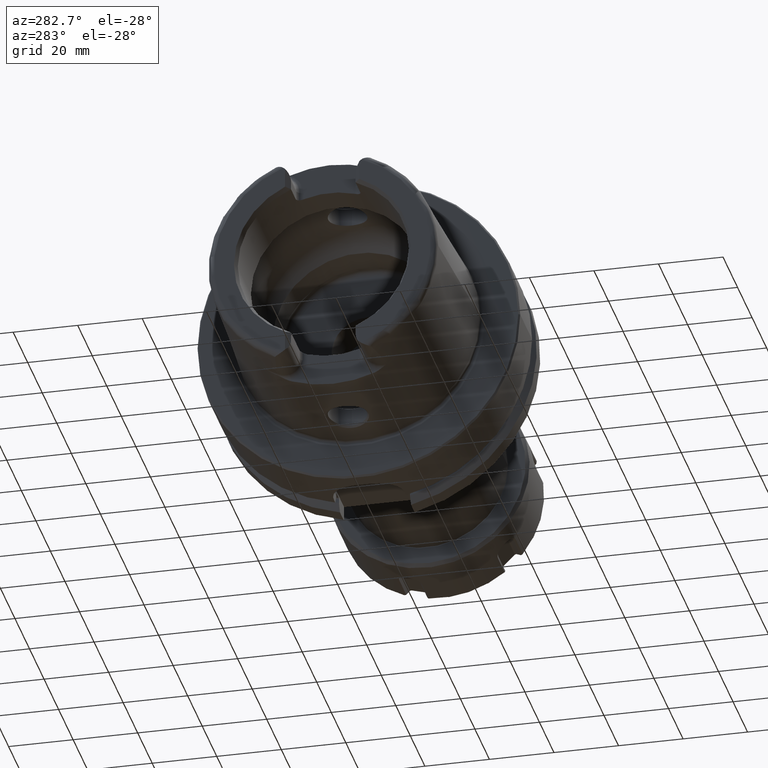
[diagram: clean part render]
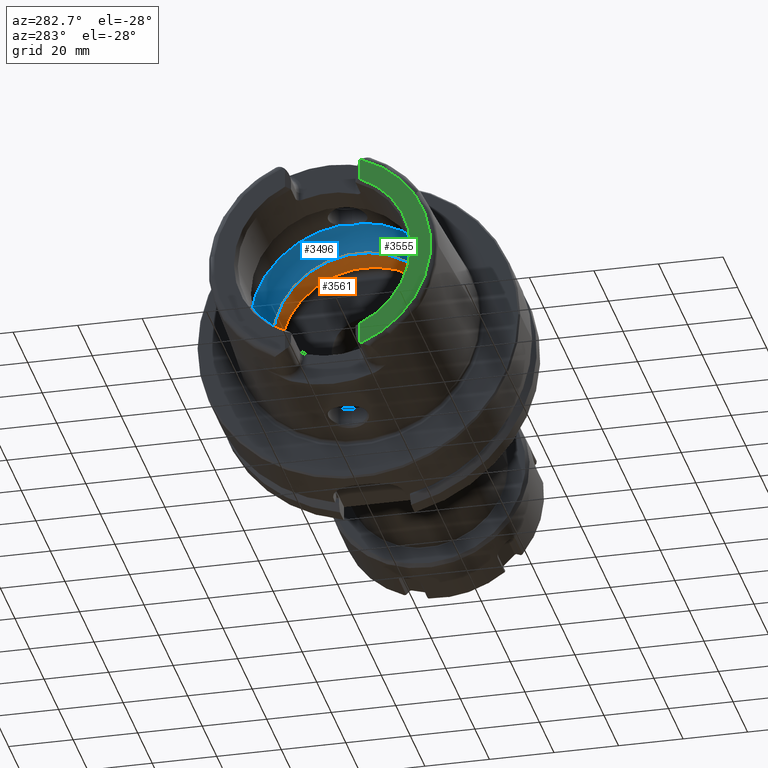
[diagram: same view with three faces highlighted in distinct colors, each labeled with its STEP entity id]
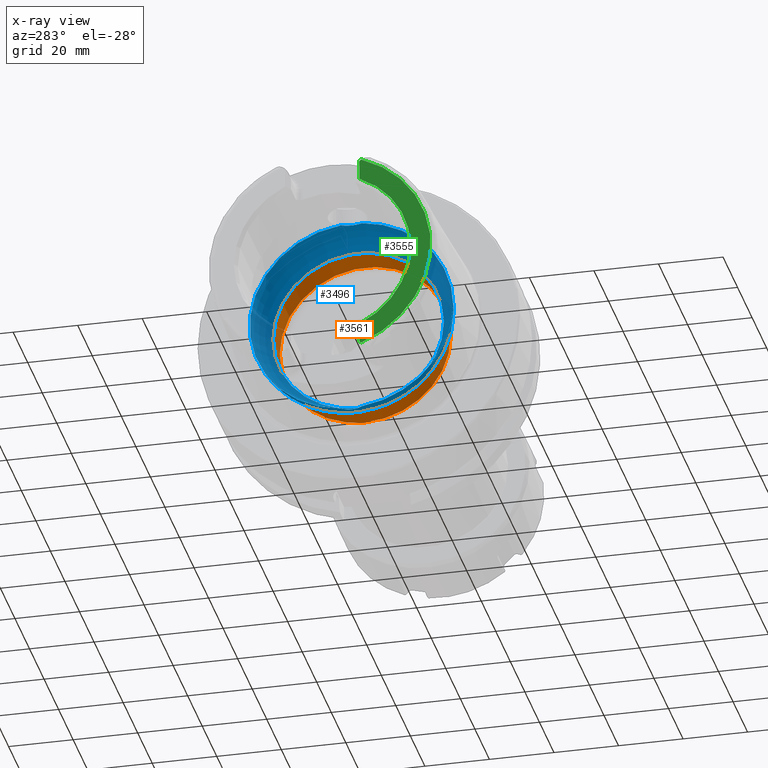
[diagram: x-ray of the same camera — body ghosted, the three highlighted faces saturated]
A machine part, auxiliary view with three faces highlighted in distinct colors.
The next image is the same camera in x-ray (body ghosted, the three faces saturated) — at least one of them is partly hidden behind the body in this view.
Their STEP definitions:

[orange] entity #3561 — the highlighted cylindrical surface (bore or boss wall) has radius 26.5 mm, axis along (-1, 0, 0).
#433=FACE_OUTER_BOUND('',#644,.T.);
#644=EDGE_LOOP('',(#2866,#2867,#2868,#2869,#2870,#2871,#2872,#2873));
#854=LINE('',#6712,#1043);
#1043=VECTOR('',#4732,26.5);
#1189=CIRCLE('',#3823,26.5);
#1190=CIRCLE('',#3824,26.5);
#1191=CIRCLE('',#3825,26.5);
#1260=CIRCLE('',#3958,26.5);
#1261=CIRCLE('',#3959,26.5);
#1262=CIRCLE('',#3960,26.5);
#1469=VERTEX_POINT('',#6074);
#1470=VERTEX_POINT('',#6075);
#1471=VERTEX_POINT('',#6077);
#1570=VERTEX_POINT('',#6704);
#1571=VERTEX_POINT('',#6706);
#1572=VERTEX_POINT('',#6708);
#1871=EDGE_CURVE('',#1469,#1470,#1189,.T.);
#1872=EDGE_CURVE('',#1471,#1469,#1190,.T.);
#1873=EDGE_CURVE('',#1470,#1471,#1191,.T.);
#2035=EDGE_CURVE('',#1570,#1571,#1260,.T.);
#2036=EDGE_CURVE('',#1571,#1572,#1261,.T.);
#2037=EDGE_CURVE('',#1572,#1570,#1262,.T.);
#2038=EDGE_CURVE('',#1571,#1471,#854,.T.);
#2866=ORIENTED_EDGE('',*,*,#2037,.F.);
#2867=ORIENTED_EDGE('',*,*,#2036,.F.);
#2868=ORIENTED_EDGE('',*,*,#2038,.T.);
#2869=ORIENTED_EDGE('',*,*,#1872,.T.);
#2870=ORIENTED_EDGE('',*,*,#1871,.T.);
#2871=ORIENTED_EDGE('',*,*,#1873,.T.);
#2872=ORIENTED_EDGE('',*,*,#2038,.F.);
#2873=ORIENTED_EDGE('',*,*,#2035,.F.);
#3441=CYLINDRICAL_SURFACE('',#3961,26.5);
#3561=ADVANCED_FACE('',(#433),#3441,.F.);
#3823=AXIS2_PLACEMENT_3D('',#6076,#4401,#4402);
#3824=AXIS2_PLACEMENT_3D('',#6078,#4403,#4404);
#3825=AXIS2_PLACEMENT_3D('',#6079,#4405,#4406);
#3958=AXIS2_PLACEMENT_3D('',#6707,#4724,#4725);
#3959=AXIS2_PLACEMENT_3D('',#6709,#4726,#4727);
#3960=AXIS2_PLACEMENT_3D('',#6710,#4728,#4729);
#3961=AXIS2_PLACEMENT_3D('',#6711,#4730,#4731);
#4401=DIRECTION('center_axis',(-1.,0.,0.));
#4402=DIRECTION('ref_axis',(0.,0.,1.));
#4403=DIRECTION('center_axis',(-1.,0.,0.));
#4404=DIRECTION('ref_axis',(0.,0.,1.));
#4405=DIRECTION('center_axis',(-1.,0.,0.));
#4406=DIRECTION('ref_axis',(0.,0.,1.));
#4724=DIRECTION('center_axis',(-1.,0.,0.));
#4725=DIRECTION('ref_axis',(0.,0.,1.));
#4726=DIRECTION('center_axis',(-1.,0.,0.));
#4727=DIRECTION('ref_axis',(0.,0.,1.));
#4728=DIRECTION('center_axis',(-1.,0.,0.));
#4729=DIRECTION('ref_axis',(0.,0.,1.));
#4730=DIRECTION('center_axis',(-1.,0.,0.));
#4731=DIRECTION('ref_axis',(0.,1.,0.));
#4732=DIRECTION('',(-1.,0.,0.));
#6074=CARTESIAN_POINT('',(-0.253205655191035,26.5,0.));
#6075=CARTESIAN_POINT('',(-0.253205655191033,-3.24531401774049E-15,-26.5));
#6076=CARTESIAN_POINT('Origin',(-0.253205655191033,0.,0.));
#6077=CARTESIAN_POINT('',(-0.253205655191033,-26.5,3.24531401774049E-15));
#6078=CARTESIAN_POINT('Origin',(-0.253205655191033,0.,0.));
#6079=CARTESIAN_POINT('Origin',(-0.253205655191033,0.,0.));
#6704=CARTESIAN_POINT('',(9.3,-3.24531401774049E-15,-26.5));
#6706=CARTESIAN_POINT('',(9.3,-26.5,3.24531401774049E-15));
#6707=CARTESIAN_POINT('Origin',(9.3,0.,0.));
#6708=CARTESIAN_POINT('',(9.3,26.5,0.));
#6709=CARTESIAN_POINT('Origin',(9.3,0.,0.));
#6710=CARTESIAN_POINT('Origin',(9.3,0.,0.));
#6711=CARTESIAN_POINT('Origin',(4.52339717240448,0.,0.));
#6712=CARTESIAN_POINT('',(4.52339717240448,-26.5,3.24531401774049E-15));

[blue] entity #3496 — the highlighted toroidal blend (fillet) surface has major radius 19.5 mm and minor (blend) radius 12 mm.
#67=B_SPLINE_CURVE_WITH_KNOTS('',3,(#5814,#5815,#5816,#5817,#5818,#5819,
#5820,#5821,#5822,#5823),.UNSPECIFIED.,.F.,.F.,(4,2,2,2,4),(-0.704306975532235,
-0.563368317577754,-0.446049375641081,-0.386534165165624,-0.352317223799877),
 .UNSPECIFIED.);
#69=B_SPLINE_CURVE_WITH_KNOTS('',3,(#5856,#5857,#5858,#5859,#5860,#5861,
#5862,#5863,#5864,#5865),.UNSPECIFIED.,.F.,.F.,(4,2,2,2,4),(-0.352317223799877,
-0.339935606805379,-0.289031750490702,-0.208814277120691,0.),
 .UNSPECIFIED.);
#72=B_SPLINE_CURVE_WITH_KNOTS('',3,(#6006,#6007,#6008,#6009,#6010,#6011,
#6012,#6013,#6014,#6015),.UNSPECIFIED.,.F.,.F.,(4,2,2,2,4),(-0.704306975532881,
-0.563368317578124,-0.446049375641235,-0.386534165165663,-0.352317223799864),
 .UNSPECIFIED.);
#74=B_SPLINE_CURVE_WITH_KNOTS('',3,(#6048,#6049,#6050,#6051,#6052,#6053,
#6054,#6055,#6056,#6057),.UNSPECIFIED.,.F.,.F.,(4,2,2,2,4),(-0.352317223799864,
-0.339935606805357,-0.289031750490679,-0.208814277120681,0.),
 .UNSPECIFIED.);
#206=TOROIDAL_SURFACE('',#3822,19.5,12.);
#368=FACE_OUTER_BOUND('',#576,.T.);
#576=EDGE_LOOP('',(#2499,#2500,#2501,#2502,#2503,#2504,#2505,#2506,#2507,
#2508,#2509,#2510));
#1183=CIRCLE('',#3816,31.5);
#1187=CIRCLE('',#3820,31.5);
#1188=CIRCLE('',#3821,31.5);
#1189=CIRCLE('',#3823,26.5);
#1190=CIRCLE('',#3824,26.5);
#1191=CIRCLE('',#3825,26.5);
#1192=CIRCLE('',#3826,12.);
#1456=VERTEX_POINT('',#5811);
#1457=VERTEX_POINT('',#5813);
#1458=VERTEX_POINT('',#5824);
#1461=VERTEX_POINT('',#6004);
#1462=VERTEX_POINT('',#6005);
#1463=VERTEX_POINT('',#6016);
#1465=VERTEX_POINT('',#6062);
#1469=VERTEX_POINT('',#6074);
#1470=VERTEX_POINT('',#6075);
#1471=VERTEX_POINT('',#6077);
#1853=EDGE_CURVE('',#1457,#1456,#67,.T.);
#1855=EDGE_CURVE('',#1456,#1458,#69,.T.);
#1859=EDGE_CURVE('',#1461,#1462,#72,.T.);
#1861=EDGE_CURVE('',#1462,#1463,#74,.T.);
#1864=EDGE_CURVE('',#1465,#1461,#1183,.T.);
#1869=EDGE_CURVE('',#1458,#1465,#1187,.T.);
#1870=EDGE_CURVE('',#1463,#1457,#1188,.T.);
#1871=EDGE_CURVE('',#1469,#1470,#1189,.T.);
#1872=EDGE_CURVE('',#1471,#1469,#1190,.T.);
#1873=EDGE_CURVE('',#1470,#1471,#1191,.T.);
#1874=EDGE_CURVE('',#1470,#1456,#1192,.T.);
#2499=ORIENTED_EDGE('',*,*,#1871,.F.);
#2500=ORIENTED_EDGE('',*,*,#1872,.F.);
#2501=ORIENTED_EDGE('',*,*,#1873,.F.);
#2502=ORIENTED_EDGE('',*,*,#1874,.T.);
#2503=ORIENTED_EDGE('',*,*,#1855,.T.);
#2504=ORIENTED_EDGE('',*,*,#1869,.T.);
#2505=ORIENTED_EDGE('',*,*,#1864,.T.);
#2506=ORIENTED_EDGE('',*,*,#1859,.T.);
#2507=ORIENTED_EDGE('',*,*,#1861,.T.);
#2508=ORIENTED_EDGE('',*,*,#1870,.T.);
#2509=ORIENTED_EDGE('',*,*,#1853,.T.);
#2510=ORIENTED_EDGE('',*,*,#1874,.F.);
#3496=ADVANCED_FACE('',(#368),#206,.F.);
#3816=AXIS2_PLACEMENT_3D('',#6063,#4386,#4387);
#3820=AXIS2_PLACEMENT_3D('',#6071,#4395,#4396);
#3821=AXIS2_PLACEMENT_3D('',#6072,#4397,#4398);
#3822=AXIS2_PLACEMENT_3D('',#6073,#4399,#4400);
#3823=AXIS2_PLACEMENT_3D('',#6076,#4401,#4402);
#3824=AXIS2_PLACEMENT_3D('',#6078,#4403,#4404);
#3825=AXIS2_PLACEMENT_3D('',#6079,#4405,#4406);
#3826=AXIS2_PLACEMENT_3D('',#6080,#4407,#4408);
#4386=DIRECTION('center_axis',(-1.,0.,0.));
#4387=DIRECTION('ref_axis',(0.,0.,1.));
#4395=DIRECTION('center_axis',(-1.,0.,0.));
#4396=DIRECTION('ref_axis',(0.,0.,1.));
#4397=DIRECTION('center_axis',(-1.,0.,0.));
#4398=DIRECTION('ref_axis',(0.,0.,1.));
#4399=DIRECTION('center_axis',(-1.,0.,0.));
#4400=DIRECTION('ref_axis',(0.,0.,1.));
#4401=DIRECTION('center_axis',(-1.,0.,0.));
#4402=DIRECTION('ref_axis',(0.,0.,1.));
#4403=DIRECTION('center_axis',(-1.,0.,0.));
#4404=DIRECTION('ref_axis',(0.,0.,1.));
#4405=DIRECTION('center_axis',(-1.,0.,0.));
#4406=DIRECTION('ref_axis',(0.,0.,1.));
#4407=DIRECTION('center_axis',(0.,1.,-1.22464679914735E-16));
#4408=DIRECTION('ref_axis',(0.,-1.22464679914735E-16,-1.));
#5811=CARTESIAN_POINT('',(-9.,7.31685969699336E-16,-31.4582607431014));
#5813=CARTESIAN_POINT('',(-10.,3.31662479035542,-31.3249102153542));
#5814=CARTESIAN_POINT('Ctrl Pts',(-10.,3.31662479035541,-31.3249102153542));
#5815=CARTESIAN_POINT('Ctrl Pts',(-9.74127936765642,2.9265887617158,-31.3662065240371));
#5816=CARTESIAN_POINT('Ctrl Pts',(-9.52862762836098,2.50688318043554,-31.3949925235713));
#5817=CARTESIAN_POINT('Ctrl Pts',(-9.23240476385999,1.69927856892452,-31.4324255053116));
#5818=CARTESIAN_POINT('Ctrl Pts',(-9.13392344910017,1.31988974241601,-31.4435429781858));
#5819=CARTESIAN_POINT('Ctrl Pts',(-9.04220079429722,0.737558982965052,-31.4537190708018));
#5820=CARTESIAN_POINT('Ctrl Pts',(-9.02106779489129,0.540134132990375,-31.4559959808551));
#5821=CARTESIAN_POINT('Ctrl Pts',(-9.00325309475839,0.228126507331767,-31.4579131546092));
#5822=CARTESIAN_POINT('Ctrl Pts',(-9.,0.114070256385601,-31.4582607431014));
#5823=CARTESIAN_POINT('Ctrl Pts',(-9.,6.93889390390723E-16,-31.4582607431014));
#5824=CARTESIAN_POINT('',(-10.,-3.31662479035542,-31.3249102153542));
#5856=CARTESIAN_POINT('Ctrl Pts',(-9.,7.01335490450834E-16,-31.4582607431014));
#5857=CARTESIAN_POINT('Ctrl Pts',(-9.,-0.0412770448981316,-31.4582607431014));
#5858=CARTESIAN_POINT('Ctrl Pts',(-9.0004259501075,-0.0825559236689198,
-31.4582151361457));
#5859=CARTESIAN_POINT('Ctrl Pts',(-9.00478075477959,-0.293516919658797,
-31.4577484235034));
#5860=CARTESIAN_POINT('Ctrl Pts',(-9.01548241237086,-0.462981091842713,
-31.4566045938877));
#5861=CARTESIAN_POINT('Ctrl Pts',(-9.06151123201634,-0.897706518793593,
-31.4515940123075));
#5862=CARTESIAN_POINT('Ctrl Pts',(-9.10742242341762,-1.16146830462694,-31.4465573898449));
#5863=CARTESIAN_POINT('Ctrl Pts',(-9.33560100291262,-2.09736419662528,-31.4200720324784));
#5864=CARTESIAN_POINT('Ctrl Pts',(-9.61673416003176,-2.73882979665765,-31.3860861033828));
#5865=CARTESIAN_POINT('Ctrl Pts',(-10.,-3.31662479035541,-31.3249102153542));
#6004=CARTESIAN_POINT('',(-10.,-3.31662479035542,31.3249102153542));
#6005=CARTESIAN_POINT('',(-8.99999999999999,7.75054056598756E-16,31.4582607431014));
#6006=CARTESIAN_POINT('Ctrl Pts',(-9.99999999999999,-3.31662479035541,31.3249102153542));
#6007=CARTESIAN_POINT('Ctrl Pts',(-9.74127936765643,-2.92658876171583,31.3662065240371));
#6008=CARTESIAN_POINT('Ctrl Pts',(-9.52862762836099,-2.50688318043561,31.3949925235713));
#6009=CARTESIAN_POINT('Ctrl Pts',(-9.23240476385996,-1.69927856892447,31.4324255053116));
#6010=CARTESIAN_POINT('Ctrl Pts',(-9.13392344910015,-1.31988974241592,31.4435429781858));
#6011=CARTESIAN_POINT('Ctrl Pts',(-9.04220079429722,-0.737558982965067,
31.4537190708018));
#6012=CARTESIAN_POINT('Ctrl Pts',(-9.02106779489129,-0.540134132990415,
31.4559959808551));
#6013=CARTESIAN_POINT('Ctrl Pts',(-9.00325309475839,-0.228126507331796,
31.4579131546092));
#6014=CARTESIAN_POINT('Ctrl Pts',(-8.99999999999999,-0.114070256385655,
31.4582607431014));
#6015=CARTESIAN_POINT('Ctrl Pts',(-8.99999999999999,7.97972798949331E-16,
31.4582607431014));
#6016=CARTESIAN_POINT('',(-10.,3.31662479035542,31.3249102153542));
#6048=CARTESIAN_POINT('Ctrl Pts',(-8.99999999999999,8.16547887892294E-16,
31.4582607431014));
#6049=CARTESIAN_POINT('Ctrl Pts',(-8.99999999999999,0.0412770448981195,
31.4582607431014));
#6050=CARTESIAN_POINT('Ctrl Pts',(-9.00042595010749,0.0825559236689046,
31.4582151361457));
#6051=CARTESIAN_POINT('Ctrl Pts',(-9.00478075477959,0.293516919658727,31.4577484235034));
#6052=CARTESIAN_POINT('Ctrl Pts',(-9.01548241237085,0.462981091842669,31.4566045938877));
#6053=CARTESIAN_POINT('Ctrl Pts',(-9.06151123201633,0.897706518793561,31.4515940123075));
#6054=CARTESIAN_POINT('Ctrl Pts',(-9.1074224234176,1.16146830462691,31.4465573898449));
#6055=CARTESIAN_POINT('Ctrl Pts',(-9.33560100291262,2.09736419662534,31.4200720324784));
#6056=CARTESIAN_POINT('Ctrl Pts',(-9.61673416003176,2.73882979665767,31.3860861033828));
#6057=CARTESIAN_POINT('Ctrl Pts',(-9.99999999999999,3.3166247903554,31.3249102153542));
#6062=CARTESIAN_POINT('',(-10.,-31.5,3.85763741731416E-15));
#6063=CARTESIAN_POINT('Origin',(-10.,0.,0.));
#6071=CARTESIAN_POINT('Origin',(-10.,0.,0.));
#6072=CARTESIAN_POINT('Origin',(-10.,0.,0.));
#6073=CARTESIAN_POINT('Origin',(-10.,0.,0.));
#6074=CARTESIAN_POINT('',(-0.253205655191035,26.5,0.));
#6075=CARTESIAN_POINT('',(-0.253205655191033,-3.24531401774049E-15,-26.5));
#6076=CARTESIAN_POINT('Origin',(-0.253205655191033,0.,0.));
#6077=CARTESIAN_POINT('',(-0.253205655191033,-26.5,3.24531401774049E-15));
#6078=CARTESIAN_POINT('Origin',(-0.253205655191033,0.,0.));
#6079=CARTESIAN_POINT('Origin',(-0.253205655191033,0.,0.));
#6080=CARTESIAN_POINT('Origin',(-10.,-2.38806125833734E-15,-19.5));

[green] entity #3555 — the highlighted planar face has unit normal (-1, 0, 0).
#292=PLANE('',#3943);
#427=FACE_OUTER_BOUND('',#636,.T.);
#636=EDGE_LOOP('',(#2836,#2837,#2838,#2839,#2840,#2841));
#777=LINE('',#5381,#966);
#784=LINE('',#5439,#973);
#966=VECTOR('',#4301,10.);
#973=VECTOR('',#4326,10.);
#1171=CIRCLE('',#3789,4.88);
#1172=CIRCLE('',#3796,4.88);
#1250=CIRCLE('',#3941,33.6001839277785);
#1251=CIRCLE('',#3944,27.3660254037844);
#1412=VERTEX_POINT('',#5378);
#1413=VERTEX_POINT('',#5380);
#1420=VERTEX_POINT('',#5413);
#1422=VERTEX_POINT('',#5432);
#1425=VERTEX_POINT('',#5437);
#1428=VERTEX_POINT('',#5447);
#1796=EDGE_CURVE('',#1412,#1413,#777,.T.);
#1805=EDGE_CURVE('',#1412,#1420,#1171,.T.);
#1811=EDGE_CURVE('',#1425,#1422,#784,.T.);
#1815=EDGE_CURVE('',#1428,#1422,#1172,.T.);
#2024=EDGE_CURVE('',#1428,#1420,#1250,.T.);
#2025=EDGE_CURVE('',#1413,#1425,#1251,.T.);
#2836=ORIENTED_EDGE('',*,*,#1796,.F.);
#2837=ORIENTED_EDGE('',*,*,#1805,.T.);
#2838=ORIENTED_EDGE('',*,*,#2024,.F.);
#2839=ORIENTED_EDGE('',*,*,#1815,.T.);
#2840=ORIENTED_EDGE('',*,*,#1811,.F.);
#2841=ORIENTED_EDGE('',*,*,#2025,.F.);
#3555=ADVANCED_FACE('',(#427),#292,.T.);
#3789=AXIS2_PLACEMENT_3D('',#5426,#4313,#4314);
#3796=AXIS2_PLACEMENT_3D('',#5448,#4334,#4335);
#3941=AXIS2_PLACEMENT_3D('',#6680,#4689,#4690);
#3943=AXIS2_PLACEMENT_3D('',#6682,#4693,#4694);
#3944=AXIS2_PLACEMENT_3D('',#6683,#4695,#4696);
#4301=DIRECTION('',(0.,0.,1.));
#4313=DIRECTION('center_axis',(-1.,0.,0.));
#4314=DIRECTION('ref_axis',(0.,-1.,0.));
#4326=DIRECTION('',(0.,0.,1.));
#4334=DIRECTION('center_axis',(-1.,0.,0.));
#4335=DIRECTION('ref_axis',(0.,0.477884921181369,-0.878422450821629));
#4689=DIRECTION('center_axis',(1.,0.,0.));
#4690=DIRECTION('ref_axis',(0.,0.,-1.));
#4693=DIRECTION('center_axis',(-1.,0.,0.));
#4694=DIRECTION('ref_axis',(0.,0.,1.));
#4695=DIRECTION('center_axis',(-1.,0.,0.));
#4696=DIRECTION('ref_axis',(0.,-1.,0.));
#5378=CARTESIAN_POINT('',(-50.,-11.51,-30.8899431813596));
#5380=CARTESIAN_POINT('',(-50.,-11.51,-24.8277918148307));
#5381=CARTESIAN_POINT('',(-50.,-11.51,-13.685));
#5413=CARTESIAN_POINT('',(-50.,-12.0743049948301,-31.355757348091));
#5426=CARTESIAN_POINT('Origin',(-50.,-14.89,-27.37));
#5432=CARTESIAN_POINT('',(-50.,-11.51,30.8899431813596));
#5437=CARTESIAN_POINT('',(-50.,-11.51,24.8277918148307));
#5439=CARTESIAN_POINT('',(-50.,-11.51,9.));
#5447=CARTESIAN_POINT('',(-50.,-12.0743049948301,31.355757348091));
#5448=CARTESIAN_POINT('Origin',(-50.,-14.89,27.37));
#6680=CARTESIAN_POINT('Origin',(-50.,0.,0.));
#6682=CARTESIAN_POINT('Origin',(-50.,33.6001839277785,0.));
#6683=CARTESIAN_POINT('Origin',(-50.,0.,0.));